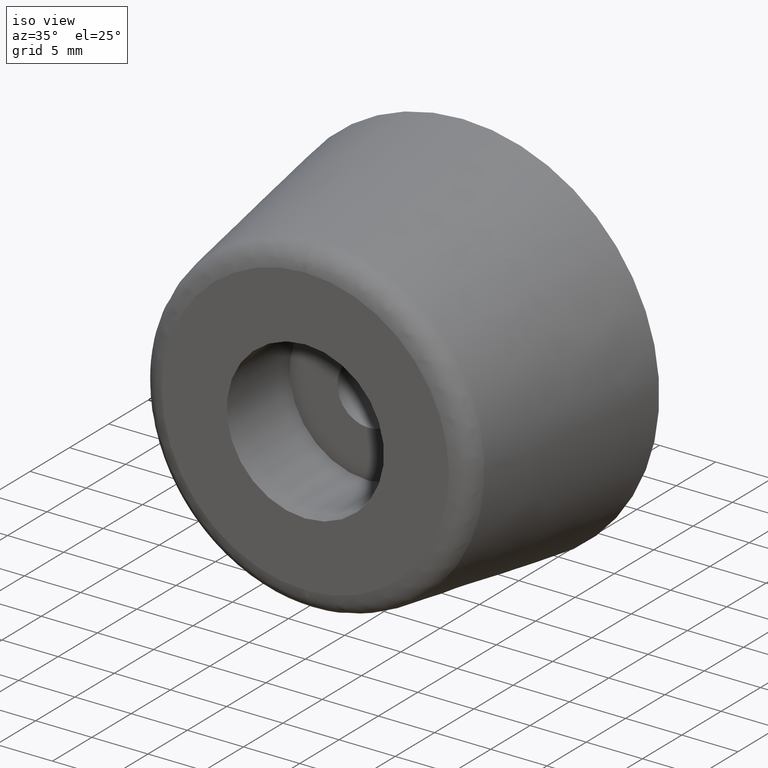
[diagram: clean part render]
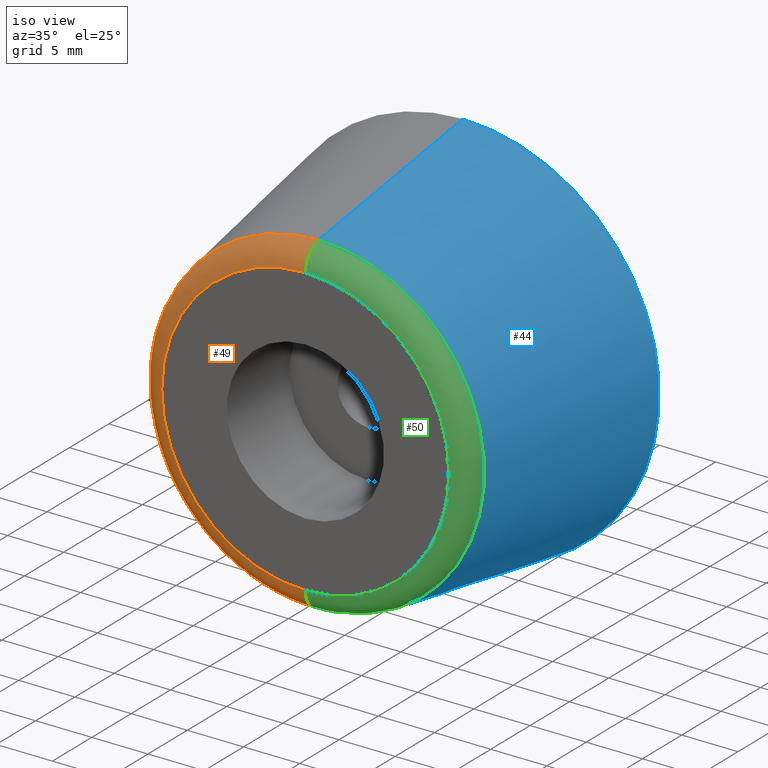
[diagram: same view with three faces highlighted in distinct colors, each labeled with its STEP entity id]
A machine part, iso view with three faces highlighted in distinct colors.
Their STEP definitions:

[orange] entity #49 — the highlighted face is a freeform B-spline surface patch.
#49=ADVANCED_FACE('',(#145),#144,.T.);
#144=( BOUNDED_SURFACE() B_SPLINE_SURFACE( 2,2,((#224,#225,#226,#227,#228),(#229,#230,#231,#232,#233),(#234,#235,#236,#237,#238),(#239,#240,#241,#242,#243),(#244,#245,#246,#247,#248)), .UNSPECIFIED.,.F.,.F.,.F.) B_SPLINE_SURFACE_WITH_KNOTS((3,2,3),(3,2,3),(0.00000000000E+00,5.00000000000E-01,1.00000000000E+00),(0.00000000000E+00,5.00000000000E-01,1.00000000000E+00), .UNSPECIFIED. ) GEOMETRIC_REPRESENTATION_ITEM() RATIONAL_B_SPLINE_SURFACE(((1.00000000000E+00,7.57740210405E-01,1.00000000000E+00,7.57740210405E-01,1.00000000000E+00),(7.07106781187E-01,5.35803241155E-01,7.07106781187E-01,5.35803241155E-01,7.07106781187E-01),(1.00000000000E+00,7.57740210405E-01,1.00000000000E+00,7.57740210405E-01,1.00000000000E+00),(7.07106781187E-01,5.35803241155E-01,7.07106781187E-01,5.35803241155E-01,7.07106781187E-01),(1.00000000000E+00,7.57740210405E-01,1.00000000000E+00,7.57740210405E-01,1.00000000000E+00))) REPRESENTATION_ITEM('') SURFACE() );
#145=FACE_OUTER_BOUND('',#249,.T.);
#224=CARTESIAN_POINT('',(3.28875018757E-14,-1.82966809059E+01,1.47554978641E+01));
#225=CARTESIAN_POINT('',(3.29187903065E-14,-2.00000000000E+01,1.45000000000E+01));
#226=CARTESIAN_POINT('',(3.31297134240E-14,-2.00000000000E+01,1.27776251584E+01));
#227=CARTESIAN_POINT('',(3.33406365414E-14,-2.00000000000E+01,1.10552503168E+01));
#228=CARTESIAN_POINT('',(3.33719249722E-14,-1.82966809059E+01,1.07997524526E+01));
#229=CARTESIAN_POINT('',(-1.47554978641E+01,-1.82966809059E+01,1.47554978641E+01));
#230=CARTESIAN_POINT('',(-1.45000000000E+01,-2.00000000000E+01,1.45000000000E+01));
#231=CARTESIAN_POINT('',(-1.27776251584E+01,-2.00000000000E+01,1.27776251584E+01));
#232=CARTESIAN_POINT('',(-1.10552503168E+01,-2.00000000000E+01,1.10552503168E+01));
#233=CARTESIAN_POINT('',(-1.07997524526E+01,-1.82966809059E+01,1.07997524526E+01));
#234=CARTESIAN_POINT('',(-1.47554978641E+01,-1.82966809059E+01,-9.03453982365E-16));
#235=CARTESIAN_POINT('',(-1.45000000000E+01,-2.00000000000E+01,-8.87810283661E-16));
#236=CARTESIAN_POINT('',(-1.27776251584E+01,-2.00000000000E+01,-7.82352208026E-16));
#237=CARTESIAN_POINT('',(-1.10552503168E+01,-2.00000000000E+01,-6.76894132391E-16));
#238=CARTESIAN_POINT('',(-1.07997524526E+01,-1.82966809059E+01,-6.61250433686E-16));
#239=CARTESIAN_POINT('',(-1.47554978641E+01,-1.82966809059E+01,-1.47554978641E+01));
#240=CARTESIAN_POINT('',(-1.45000000000E+01,-2.00000000000E+01,-1.45000000000E+01));
#241=CARTESIAN_POINT('',(-1.27776251584E+01,-2.00000000000E+01,-1.27776251584E+01));
#242=CARTESIAN_POINT('',(-1.10552503168E+01,-2.00000000000E+01,-1.10552503168E+01));
#243=CARTESIAN_POINT('',(-1.07997524526E+01,-1.82966809059E+01,-1.07997524526E+01));
#244=CARTESIAN_POINT('',(3.46944098404E-14,-1.82966809059E+01,-1.47554978641E+01));
#245=CARTESIAN_POINT('',(3.46944108738E-14,-2.00000000000E+01,-1.45000000000E+01));
#246=CARTESIAN_POINT('',(3.46944178400E-14,-2.00000000000E+01,-1.27776251584E+01));
#247=CARTESIAN_POINT('',(3.46944248062E-14,-2.00000000000E+01,-1.10552503168E+01));
#248=CARTESIAN_POINT('',(3.46944258396E-14,-1.82966809059E+01,-1.07997524526E+01));
#249=EDGE_LOOP('',(#312,#313,#314,#315));
#312=ORIENTED_EDGE('',*,*,#329,.F.);
#313=ORIENTED_EDGE('',*,*,#340,.F.);
#314=ORIENTED_EDGE('',*,*,#333,.T.);
#315=ORIENTED_EDGE('',*,*,#341,.T.);
#329=EDGE_CURVE('',#399,#398,#406,.T.);
#333=EDGE_CURVE('',#433,#426,#434,.T.);
#340=EDGE_CURVE('',#433,#399,#476,.T.);
#341=EDGE_CURVE('',#426,#398,#482,.T.);
#398=VERTEX_POINT('',#528);
#399=VERTEX_POINT('',#529);
#406=CIRCLE('',#537,1.27776251584E+01);
#426=VERTEX_POINT('',#548);
#433=VERTEX_POINT('',#551);
#434=CIRCLE('',#555,1.47554978641E+01);
#476=(BOUNDED_CURVE() B_SPLINE_CURVE(2,(#570,#571,#572),.UNSPECIFIED.,.F.,.F.) B_SPLINE_CURVE_WITH_KNOTS((3,3),(0.00000000000E+00,5.00000000000E-01),.UNSPECIFIED.) CURVE() GEOMETRIC_REPRESENTATION_ITEM() RATIONAL_B_SPLINE_CURVE((1.00000000000E+00,7.57740210405E-01,1.00000000000E+00)) REPRESENTATION_ITEM('') );
#482=(BOUNDED_CURVE() B_SPLINE_CURVE(3,(#573,#574,#575,#576,#577),.UNSPECIFIED.,.F.,.F.) B_SPLINE_CURVE_WITH_KNOTS((4,1,4),(0.00000000000E+00,2.50000001195E-01,5.00000002124E-01),.UNSPECIFIED.) CURVE() GEOMETRIC_REPRESENTATION_ITEM() RATIONAL_B_SPLINE_CURVE((1.00000000000E+00,1.00000000000E+00,1.00000000000E+00,1.00000000000E+00,1.00000000000E+00)) REPRESENTATION_ITEM('') );
#528=CARTESIAN_POINT('',(3.55271367880E-14,-2.00000000000E+01,-1.27776251584E+01));
#529=CARTESIAN_POINT('',(3.55271367880E-14,-2.00000000000E+01,1.27776251584E+01));
#534=CARTESIAN_POINT('',(3.55271367880E-14,-2.00000000000E+01,0.00000000000E+00));
#535=DIRECTION('',(0.00000000000E+00,-1.00000000000E+00,-0.00000000000E+00));
#536=DIRECTION('',(-1.22460635382E-16,0.00000000000E+00,-1.00000000000E+00));
#537=AXIS2_PLACEMENT_3D('',#534,#535,#536);
#548=CARTESIAN_POINT('',(3.55271367880E-14,-1.82966809059E+01,-1.47554978641E+01));
#551=CARTESIAN_POINT('',(3.67113746809E-14,-1.82966809059E+01,1.47554978641E+01));
#552=CARTESIAN_POINT('',(3.55271367880E-14,-1.82966809059E+01,0.00000000000E+00));
#553=DIRECTION('',(0.00000000000E+00,-1.00000000000E+00,-0.00000000000E+00));
#554=DIRECTION('',(-1.22460635382E-16,0.00000000000E+00,-1.00000000000E+00));
#555=AXIS2_PLACEMENT_3D('',#552,#553,#554);
#570=CARTESIAN_POINT('',(3.28875018757E-14,-1.82966809059E+01,1.47554978641E+01));
#571=CARTESIAN_POINT('',(3.29187903065E-14,-2.00000000000E+01,1.45000000000E+01));
#572=CARTESIAN_POINT('',(3.31297134240E-14,-2.00000000000E+01,1.27776251584E+01));
#573=CARTESIAN_POINT('',(3.84877315203E-14,-1.82966809059E+01,-1.47554978641E+01));
#574=CARTESIAN_POINT('',(3.80054448440E-14,-1.87622940037E+01,-1.46886537527E+01));
#575=CARTESIAN_POINT('',(3.72095961651E-14,-1.96483315030E+01,-1.41971475057E+01));
#576=CARTESIAN_POINT('',(3.71428646993E-14,-2.00029646886E+01,-1.32480025514E+01));
#577=CARTESIAN_POINT('',(3.73034936287E-14,-2.00000000000E+01,-1.27776251473E+01));

[blue] entity #44 — the highlighted face is a freeform B-spline surface patch.
#44=ADVANCED_FACE('',(#95),#94,.T.);
#94=( BOUNDED_SURFACE() B_SPLINE_SURFACE( 2,1,((#193,#194),(#195,#196),(#197,#198),(#199,#200),(#201,#202)), .UNSPECIFIED.,.F.,.F.,.F.) B_SPLINE_SURFACE_WITH_KNOTS((3,2,3),(2,2),(0.00000000000E+00,5.00000000000E-01,1.00000000000E+00),(0.00000000000E+00,1.00000000000E+00), .UNSPECIFIED. ) GEOMETRIC_REPRESENTATION_ITEM() RATIONAL_B_SPLINE_SURFACE(((1.00000000000E+00,1.00000000000E+00),(7.07106781187E-01,7.07106781187E-01),(1.00000000000E+00,1.00000000000E+00),(7.07106781187E-01,7.07106781187E-01),(1.00000000000E+00,1.00000000000E+00))) REPRESENTATION_ITEM('') SURFACE() );
#95=FACE_OUTER_BOUND('',#203,.T.);
#193=CARTESIAN_POINT('',(3.73341641109E-14,-1.82966809059E+01,1.47554978641E+01));
#194=CARTESIAN_POINT('',(3.76702686865E-14,0.00000000000E+00,1.75000000000E+01));
#195=CARTESIAN_POINT('',(1.47554978641E+01,-1.82966809059E+01,1.47554978641E+01));
#196=CARTESIAN_POINT('',(1.75000000000E+01,0.00000000000E+00,1.75000000000E+01));
#197=CARTESIAN_POINT('',(1.47554978641E+01,-1.82966809059E+01,-9.03513661456E-16));
#198=CARTESIAN_POINT('',(1.75000000000E+01,0.00000000000E+00,-1.07156594925E-15));
#199=CARTESIAN_POINT('',(1.47554978641E+01,-1.82966809059E+01,-1.47554978641E+01));
#200=CARTESIAN_POINT('',(1.75000000000E+01,0.00000000000E+00,-1.75000000000E+01));
#201=CARTESIAN_POINT('',(3.55271367880E-14,-1.82966809059E+01,-1.47554978641E+01));
#202=CARTESIAN_POINT('',(3.55271367880E-14,0.00000000000E+00,-1.75000000000E+01));
#203=EDGE_LOOP('',(#292,#293,#294,#295));
#292=ORIENTED_EDGE('',*,*,#335,.F.);
#293=ORIENTED_EDGE('',*,*,#332,.T.);
#294=ORIENTED_EDGE('',*,*,#321,.T.);
#295=ORIENTED_EDGE('',*,*,#334,.F.);
#321=EDGE_CURVE('',#343,#342,#350,.T.);
#332=EDGE_CURVE('',#426,#343,#427,.T.);
#334=EDGE_CURVE('',#433,#342,#440,.T.);
#335=EDGE_CURVE('',#426,#433,#446,.T.);
#342=VERTEX_POINT('',#488);
#343=VERTEX_POINT('',#489);
#350=CIRCLE('',#497,1.75000000000E+01);
#426=VERTEX_POINT('',#548);
#427=(BOUNDED_CURVE() B_SPLINE_CURVE(1,(#549,#550),.UNSPECIFIED.,.F.,.F.) B_SPLINE_CURVE_WITH_KNOTS((2,2),(0.00000000000E+00,1.00000000000E+00),.UNSPECIFIED.) CURVE() GEOMETRIC_REPRESENTATION_ITEM() RATIONAL_B_SPLINE_CURVE((1.00000000000E+00,1.00000000000E+00)) REPRESENTATION_ITEM('') );
#433=VERTEX_POINT('',#551);
#440=(BOUNDED_CURVE() B_SPLINE_CURVE(1,(#556,#557),.UNSPECIFIED.,.F.,.F.) B_SPLINE_CURVE_WITH_KNOTS((2,2),(0.00000000000E+00,1.00000000000E+00),.UNSPECIFIED.) CURVE() GEOMETRIC_REPRESENTATION_ITEM() RATIONAL_B_SPLINE_CURVE((7.50000000000E-01,7.50000000000E-01)) REPRESENTATION_ITEM('') );
#446=CIRCLE('',#561,1.47554978641E+01);
#488=CARTESIAN_POINT('',(3.67113746809E-14,1.80635402874E-15,1.75000000000E+01));
#489=CARTESIAN_POINT('',(3.55271367880E-14,1.80635402874E-15,-1.75000000000E+01));
#494=CARTESIAN_POINT('',(3.55271367880E-14,1.80635402874E-15,0.00000000000E+00));
#495=DIRECTION('',(0.00000000000E+00,-1.00000000000E+00,-0.00000000000E+00));
#496=DIRECTION('',(-1.22460635382E-16,0.00000000000E+00,-1.00000000000E+00));
#497=AXIS2_PLACEMENT_3D('',#494,#495,#496);
#548=CARTESIAN_POINT('',(3.55271367880E-14,-1.82966809059E+01,-1.47554978641E+01));
#549=CARTESIAN_POINT('',(3.19132015004E-14,-1.82966809059E+01,-1.47554978641E+01));
#550=CARTESIAN_POINT('',(3.12410145496E-14,0.00000000000E+00,-1.75000000000E+01));
#551=CARTESIAN_POINT('',(3.67113746809E-14,-1.82966809059E+01,1.47554978641E+01));
#556=CARTESIAN_POINT('',(3.90798504668E-14,-1.82966809059E+01,1.47554978641E+01));
#557=CARTESIAN_POINT('',(4.02640883597E-14,0.00000000000E+00,1.75000000000E+01));
#558=CARTESIAN_POINT('',(3.55271367880E-14,-1.82966809059E+01,0.00000000000E+00));
#559=DIRECTION('',(0.00000000000E+00,-1.00000000000E+00,-0.00000000000E+00));
#560=DIRECTION('',(-1.22460635382E-16,0.00000000000E+00,-1.00000000000E+00));
#561=AXIS2_PLACEMENT_3D('',#558,#559,#560);

[green] entity #50 — the highlighted face is a freeform B-spline surface patch.
#50=ADVANCED_FACE('',(#155),#154,.T.);
#154=( BOUNDED_SURFACE() B_SPLINE_SURFACE( 2,2,((#250,#251,#252,#253,#254),(#255,#256,#257,#258,#259),(#260,#261,#262,#263,#264),(#265,#266,#267,#268,#269),(#270,#271,#272,#273,#274)), .UNSPECIFIED.,.F.,.F.,.F.) B_SPLINE_SURFACE_WITH_KNOTS((3,2,3),(3,2,3),(0.00000000000E+00,5.00000000000E-01,1.00000000000E+00),(0.00000000000E+00,5.00000000000E-01,1.00000000000E+00), .UNSPECIFIED. ) GEOMETRIC_REPRESENTATION_ITEM() RATIONAL_B_SPLINE_SURFACE(((1.00000000000E+00,7.57740210405E-01,1.00000000000E+00,7.57740210405E-01,1.00000000000E+00),(7.07106781187E-01,5.35803241155E-01,7.07106781187E-01,5.35803241155E-01,7.07106781187E-01),(1.00000000000E+00,7.57740210405E-01,1.00000000000E+00,7.57740210405E-01,1.00000000000E+00),(7.07106781187E-01,5.35803241155E-01,7.07106781187E-01,5.35803241155E-01,7.07106781187E-01),(1.00000000000E+00,7.57740210405E-01,1.00000000000E+00,7.57740210405E-01,1.00000000000E+00))) REPRESENTATION_ITEM('') SURFACE() );
#155=FACE_OUTER_BOUND('',#275,.T.);
#250=CARTESIAN_POINT('',(3.46944098404E-14,-1.82966809059E+01,-1.47554978641E+01));
#251=CARTESIAN_POINT('',(3.46944108738E-14,-2.00000000000E+01,-1.45000000000E+01));
#252=CARTESIAN_POINT('',(3.46944178400E-14,-2.00000000000E+01,-1.27776251584E+01));
#253=CARTESIAN_POINT('',(3.46944248062E-14,-2.00000000000E+01,-1.10552503168E+01));
#254=CARTESIAN_POINT('',(3.46944258396E-14,-1.82966809059E+01,-1.07997524526E+01));
#255=CARTESIAN_POINT('',(1.47554978641E+01,-1.82966809059E+01,-1.47554978641E+01));
#256=CARTESIAN_POINT('',(1.45000000000E+01,-2.00000000000E+01,-1.45000000000E+01));
#257=CARTESIAN_POINT('',(1.27776251584E+01,-2.00000000000E+01,-1.27776251584E+01));
#258=CARTESIAN_POINT('',(1.10552503168E+01,-2.00000000000E+01,-1.10552503168E+01));
#259=CARTESIAN_POINT('',(1.07997524526E+01,-1.82966809059E+01,-1.07997524526E+01));
#260=CARTESIAN_POINT('',(1.47554978641E+01,-1.82966809059E+01,-9.03573340547E-16));
#261=CARTESIAN_POINT('',(1.45000000000E+01,-2.00000000000E+01,-8.87927575103E-16));
#262=CARTESIAN_POINT('',(1.27776251584E+01,-2.00000000000E+01,-7.82455567066E-16));
#263=CARTESIAN_POINT('',(1.10552503168E+01,-2.00000000000E+01,-6.76983559029E-16));
#264=CARTESIAN_POINT('',(1.07997524526E+01,-1.82966809059E+01,-6.61337793586E-16));
#265=CARTESIAN_POINT('',(1.47554978641E+01,-1.82966809059E+01,1.47554978641E+01));
#266=CARTESIAN_POINT('',(1.45000000000E+01,-2.00000000000E+01,1.45000000000E+01));
#267=CARTESIAN_POINT('',(1.27776251584E+01,-2.00000000000E+01,1.27776251584E+01));
#268=CARTESIAN_POINT('',(1.10552503168E+01,-2.00000000000E+01,1.10552503168E+01));
#269=CARTESIAN_POINT('',(1.07997524526E+01,-1.82966809059E+01,1.07997524526E+01));
#270=CARTESIAN_POINT('',(3.65015565215E-14,-1.82966809059E+01,1.47554978641E+01));
#271=CARTESIAN_POINT('',(3.64702660240E-14,-2.00000000000E+01,1.45000000000E+01));
#272=CARTESIAN_POINT('',(3.62593289741E-14,-2.00000000000E+01,1.27776251584E+01));
#273=CARTESIAN_POINT('',(3.60483919243E-14,-2.00000000000E+01,1.10552503168E+01));
#274=CARTESIAN_POINT('',(3.60171014268E-14,-1.82966809059E+01,1.07997524526E+01));
#275=EDGE_LOOP('',(#316,#317,#318,#319));
#316=ORIENTED_EDGE('',*,*,#335,.T.);
#317=ORIENTED_EDGE('',*,*,#340,.T.);
#318=ORIENTED_EDGE('',*,*,#328,.F.);
#319=ORIENTED_EDGE('',*,*,#341,.F.);
#328=EDGE_CURVE('',#398,#399,#400,.T.);
#335=EDGE_CURVE('',#426,#433,#446,.T.);
#340=EDGE_CURVE('',#433,#399,#476,.T.);
#341=EDGE_CURVE('',#426,#398,#482,.T.);
#398=VERTEX_POINT('',#528);
#399=VERTEX_POINT('',#529);
#400=CIRCLE('',#533,1.27776251584E+01);
#426=VERTEX_POINT('',#548);
#433=VERTEX_POINT('',#551);
#446=CIRCLE('',#561,1.47554978641E+01);
#476=(BOUNDED_CURVE() B_SPLINE_CURVE(2,(#570,#571,#572),.UNSPECIFIED.,.F.,.F.) B_SPLINE_CURVE_WITH_KNOTS((3,3),(0.00000000000E+00,5.00000000000E-01),.UNSPECIFIED.) CURVE() GEOMETRIC_REPRESENTATION_ITEM() RATIONAL_B_SPLINE_CURVE((1.00000000000E+00,7.57740210405E-01,1.00000000000E+00)) REPRESENTATION_ITEM('') );
#482=(BOUNDED_CURVE() B_SPLINE_CURVE(3,(#573,#574,#575,#576,#577),.UNSPECIFIED.,.F.,.F.) B_SPLINE_CURVE_WITH_KNOTS((4,1,4),(0.00000000000E+00,2.50000001195E-01,5.00000002124E-01),.UNSPECIFIED.) CURVE() GEOMETRIC_REPRESENTATION_ITEM() RATIONAL_B_SPLINE_CURVE((1.00000000000E+00,1.00000000000E+00,1.00000000000E+00,1.00000000000E+00,1.00000000000E+00)) REPRESENTATION_ITEM('') );
#528=CARTESIAN_POINT('',(3.55271367880E-14,-2.00000000000E+01,-1.27776251584E+01));
#529=CARTESIAN_POINT('',(3.55271367880E-14,-2.00000000000E+01,1.27776251584E+01));
#530=CARTESIAN_POINT('',(3.55271367880E-14,-2.00000000000E+01,0.00000000000E+00));
#531=DIRECTION('',(0.00000000000E+00,-1.00000000000E+00,-0.00000000000E+00));
#532=DIRECTION('',(-1.22460635382E-16,0.00000000000E+00,-1.00000000000E+00));
#533=AXIS2_PLACEMENT_3D('',#530,#531,#532);
#548=CARTESIAN_POINT('',(3.55271367880E-14,-1.82966809059E+01,-1.47554978641E+01));
#551=CARTESIAN_POINT('',(3.67113746809E-14,-1.82966809059E+01,1.47554978641E+01));
#558=CARTESIAN_POINT('',(3.55271367880E-14,-1.82966809059E+01,0.00000000000E+00));
#559=DIRECTION('',(0.00000000000E+00,-1.00000000000E+00,-0.00000000000E+00));
#560=DIRECTION('',(-1.22460635382E-16,0.00000000000E+00,-1.00000000000E+00));
#561=AXIS2_PLACEMENT_3D('',#558,#559,#560);
#570=CARTESIAN_POINT('',(3.28875018757E-14,-1.82966809059E+01,1.47554978641E+01));
#571=CARTESIAN_POINT('',(3.29187903065E-14,-2.00000000000E+01,1.45000000000E+01));
#572=CARTESIAN_POINT('',(3.31297134240E-14,-2.00000000000E+01,1.27776251584E+01));
#573=CARTESIAN_POINT('',(3.84877315203E-14,-1.82966809059E+01,-1.47554978641E+01));
#574=CARTESIAN_POINT('',(3.80054448440E-14,-1.87622940037E+01,-1.46886537527E+01));
#575=CARTESIAN_POINT('',(3.72095961651E-14,-1.96483315030E+01,-1.41971475057E+01));
#576=CARTESIAN_POINT('',(3.71428646993E-14,-2.00029646886E+01,-1.32480025514E+01));
#577=CARTESIAN_POINT('',(3.73034936287E-14,-2.00000000000E+01,-1.27776251473E+01));